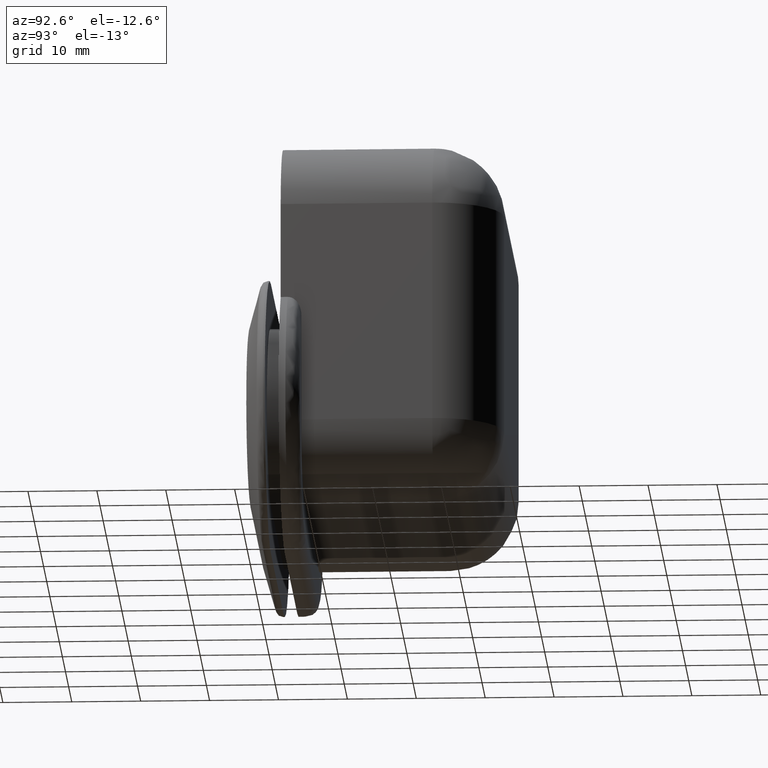
[diagram: clean part render]
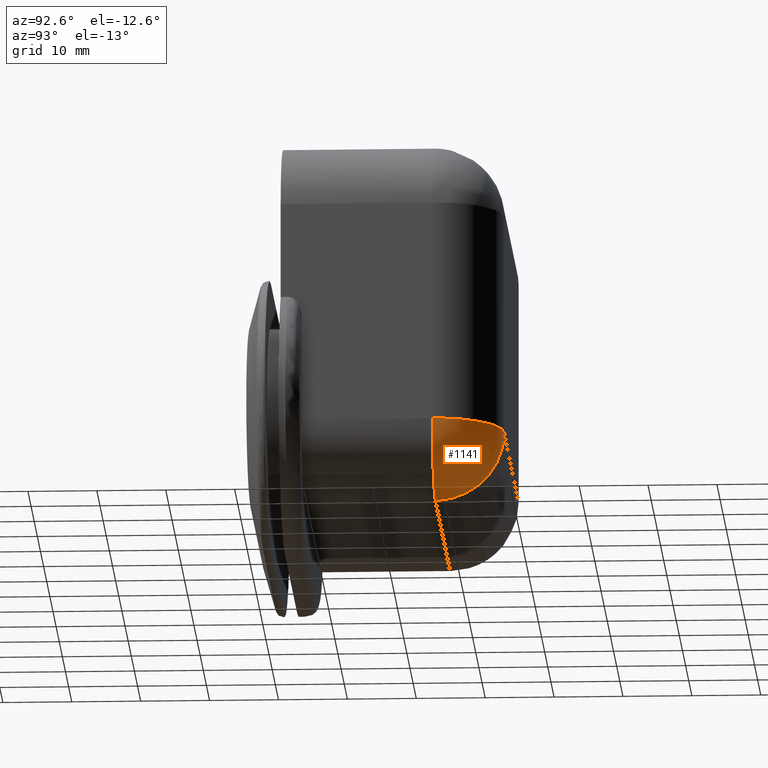
[diagram: same view with one face highlighted and labeled with its STEP entity id]
A machine part, auxiliary view. The second image highlights one B-rep face of the part: STEP entity #1141.
In plain terms, the highlighted face is a freeform B-spline surface patch.
Its self-contained STEP definition (entity closure, byte-faithful):
#445=CARTESIAN_POINT('',(33.0,27.0,-3.000000000000100));
#446=VERTEX_POINT('',#445);
#934=CARTESIAN_POINT('',(23.0,37.0,-3.000000000000100));
#935=VERTEX_POINT('',#934);
#936=CARTESIAN_POINT('',(23.0,37.0,-3.000000000000100));
#937=CARTESIAN_POINT('',(33.0,37.0,-3.000000000000101));
#938=CARTESIAN_POINT('',(33.0,27.0,-3.000000000000100));
#946=(BOUNDED_CURVE()B_SPLINE_CURVE(2,(#936,#937,#938),.UNSPECIFIED.,.F.,.U.)CURVE()GEOMETRIC_REPRESENTATION_ITEM()QUASI_UNIFORM_CURVE()RATIONAL_B_SPLINE_CURVE((1.0,0.707106781186548,1.0))REPRESENTATION_ITEM(''));
#947=EDGE_CURVE('',#935,#446,#946,.T.);
#972=CARTESIAN_POINT('',(23.0,27.0,-13.0));
#973=VERTEX_POINT('',#972);
#979=CARTESIAN_POINT('',(33.0,27.0,-3.000000000000100));
#980=CARTESIAN_POINT('',(33.0,27.000000000000011,-13.000000000000099));
#981=CARTESIAN_POINT('',(23.0,27.0,-13.0));
#989=(BOUNDED_CURVE()B_SPLINE_CURVE(2,(#979,#980,#981),.UNSPECIFIED.,.F.,.U.)CURVE()GEOMETRIC_REPRESENTATION_ITEM()QUASI_UNIFORM_CURVE()RATIONAL_B_SPLINE_CURVE((1.0,0.707106781186548,1.0))REPRESENTATION_ITEM(''));
#990=EDGE_CURVE('',#446,#973,#989,.T.);
#1100=CARTESIAN_POINT('',(22.465753433265700,25.725126127515715,-12.904003090427187));
#1101=CARTESIAN_POINT('',(22.059388298859663,28.381349798891485,-13.224000060468283));
#1102=CARTESIAN_POINT('',(19.717704650498973,35.406401517055166,-9.912359832820126));
#1103=CARTESIAN_POINT('',(18.117766025482972,35.549759837533131,-4.750827843786358));
#1104=CARTESIAN_POINT('',(25.908555774752351,26.221752452843631,-13.153643688764872));
#1105=CARTESIAN_POINT('',(25.773996872900319,29.313939670873140,-13.544421137683340));
#1106=CARTESIAN_POINT('',(23.090092408392419,37.365653950458949,-9.748807670402647));
#1107=CARTESIAN_POINT('',(20.385730422596616,36.980676972260966,-4.087561594696158));
#1108=CARTESIAN_POINT('',(33.138752992015789,26.221752452843631,-8.041121363200354));
#1109=CARTESIAN_POINT('',(33.699730855117437,29.313939670873140,-7.940079967871235));
#1110=CARTESIAN_POINT('',(31.015826390609551,37.365653950458949,-4.144466500590539));
#1111=CARTESIAN_POINT('',(26.112954897851417,36.980676972260966,-0.037801662374139));
#1112=CARTESIAN_POINT('',(32.835706650499489,25.208392937137415,-2.778598063194959));
#1113=CARTESIAN_POINT('',(33.230754234460200,27.432902739295695,-2.327493951059130));
#1114=CARTESIAN_POINT('',(31.237110315629895,33.413835153966637,0.491943852090101));
#1115=CARTESIAN_POINT('',(27.266311755431563,33.982719128935670,2.748062070981928));
#1123=(BOUNDED_SURFACE()B_SPLINE_SURFACE(2,2,((#1100,#1104,#1108,#1112),(#1101,#1105,#1109,#1113),(#1102,#1106,#1110,#1114),(#1103,#1107,#1111,#1115)),.UNSPECIFIED.,.F.,.F.,.U.)B_SPLINE_SURFACE_WITH_KNOTS((3,1,3),(3,1,3),(0.0,5.848833948267213,17.532426126052531),(0.0,7.208973310483660,18.304988613592190),.UNSPECIFIED.)GEOMETRIC_REPRESENTATION_ITEM()RATIONAL_B_SPLINE_SURFACE(((1.242341925801225,1.096198864851564,1.096198864851564,1.442429472613545),(1.146143060949661,1.0,1.0,1.346230607761982),(1.146143060949661,1.0,1.0,1.346230607761982),(1.530013034347994,1.383869973398333,1.383869973398333,1.730100581160315)))REPRESENTATION_ITEM('')SURFACE());
#1124=ORIENTED_EDGE('',*,*,#947,.T.);
#1125=ORIENTED_EDGE('',*,*,#990,.T.);
#1126=CARTESIAN_POINT('',(23.0,37.0,-3.000000000000100));
#1127=CARTESIAN_POINT('',(22.999999999999993,37.0,-13.000000000000099));
#1128=CARTESIAN_POINT('',(23.0,27.0,-13.0));
#1136=(BOUNDED_CURVE()B_SPLINE_CURVE(2,(#1126,#1127,#1128),.UNSPECIFIED.,.F.,.U.)CURVE()GEOMETRIC_REPRESENTATION_ITEM()QUASI_UNIFORM_CURVE()RATIONAL_B_SPLINE_CURVE((1.0,0.707106781186548,1.0))REPRESENTATION_ITEM(''));
#1137=EDGE_CURVE('',#935,#973,#1136,.T.);
#1138=ORIENTED_EDGE('',*,*,#1137,.F.);
#1139=EDGE_LOOP('',(#1124,#1125,#1138));
#1140=FACE_OUTER_BOUND('',#1139,.T.);
#1141=ADVANCED_FACE('',(#1140),#1123,.T.);